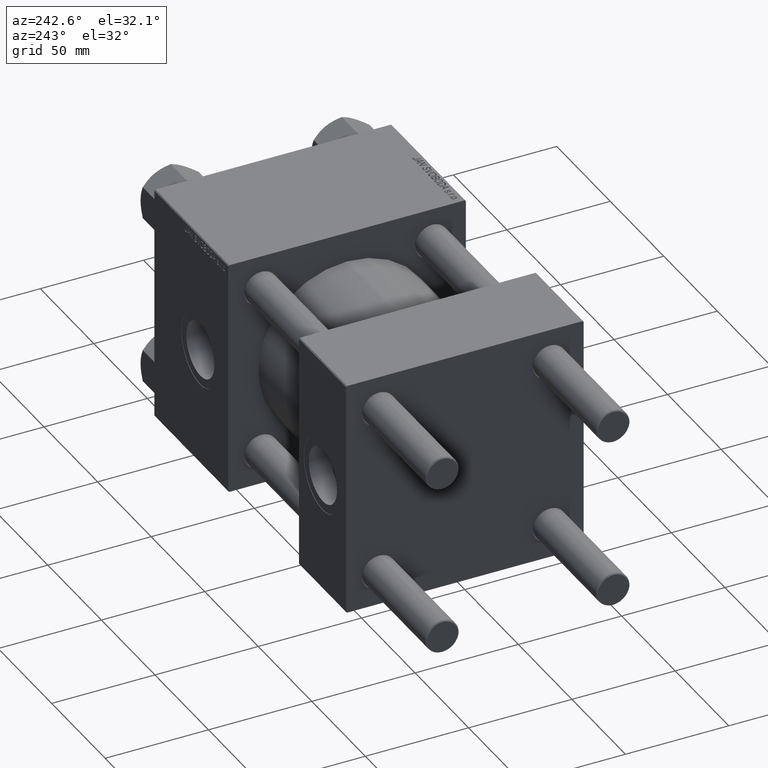
[diagram: clean part render]
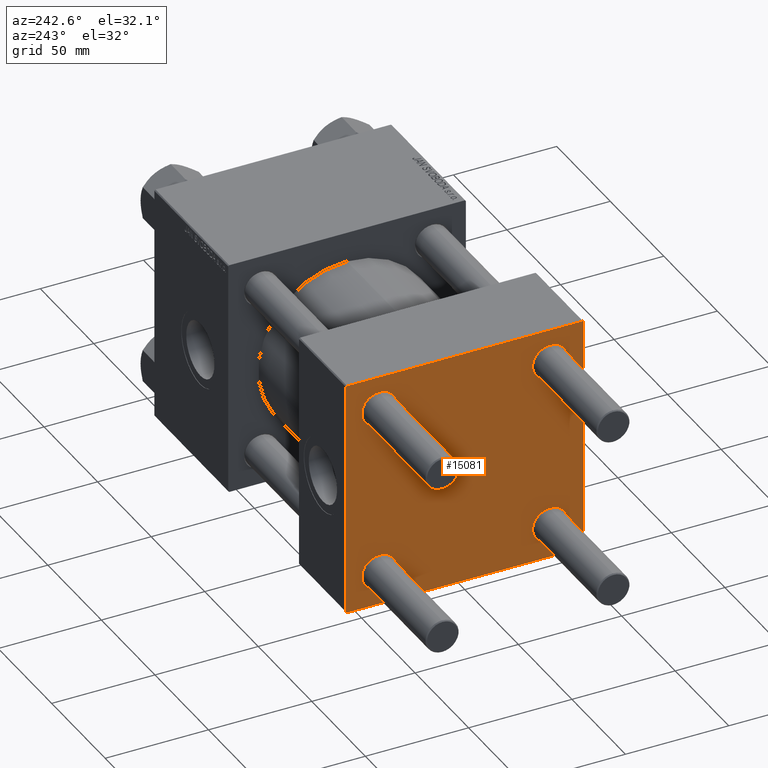
[diagram: same view with one face highlighted and labeled with its STEP entity id]
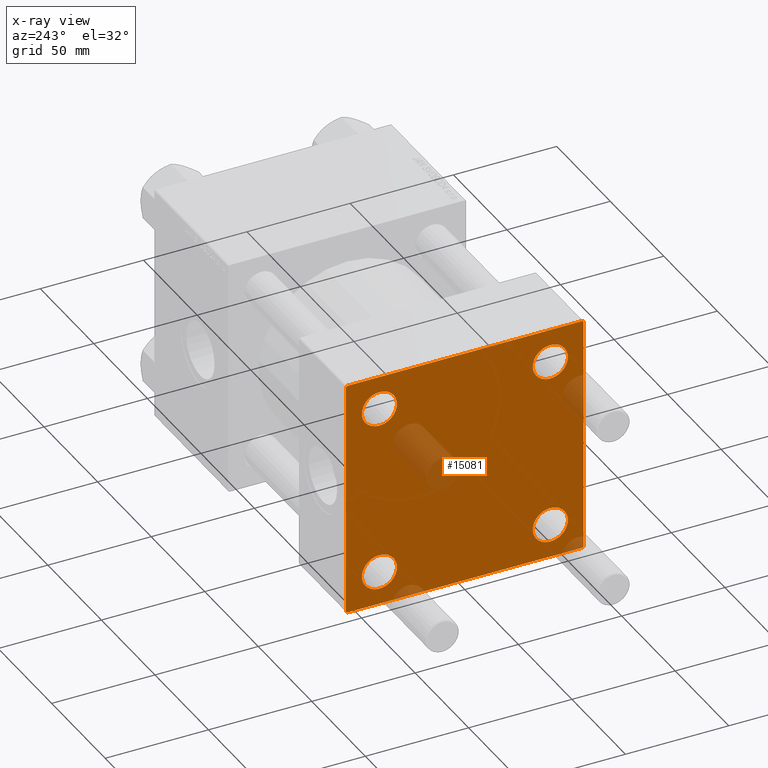
[diagram: x-ray of the same camera — body ghosted, the highlighted face saturated]
A machine part, auxiliary view. The second image highlights one B-rep face of the part: STEP entity #15081.
The next image is the same camera in x-ray: the body ghosted, the highlighted face saturated — about 7% of this face is hidden behind the body in this view.
In plain terms, the highlighted planar face has unit normal (-1, 0, 0).
Its self-contained STEP definition (entity closure, byte-faithful):
#62 = DIRECTION ( 'NONE',  ( 1.000000000000000000, -0.000000000000000000, 0.000000000000000000 ) ) ;
#481 = CARTESIAN_POINT ( 'NONE',  ( 0.000000000000000000, 57.00000000000000711, 57.50000000000000711 ) ) ;
#2339 = CIRCLE ( 'NONE', #10463, 8.499999999999992895 ) ;
#2659 = CIRCLE ( 'NONE', #42394, 8.499999999999992895 ) ;
#2953 = EDGE_LOOP ( 'NONE', ( #15882, #36241 ) ) ;
#3479 = DIRECTION ( 'NONE',  ( -0.000000000000000000, -0.7071067811865376918, -0.7071067811865573427 ) ) ;
#3498 = EDGE_CURVE ( 'NONE', #49100, #49139, #15349, .T. ) ;
#3598 = VERTEX_POINT ( 'NONE', #16058 ) ;
#3715 = EDGE_CURVE ( 'NONE', #22570, #4172, #25665, .T. ) ;
#3957 = LINE ( 'NONE', #22514, #30991 ) ;
#4044 = VERTEX_POINT ( 'NONE', #20174 ) ;
#4172 = VERTEX_POINT ( 'NONE', #8753 ) ;
#4495 = VERTEX_POINT ( 'NONE', #31535 ) ;
#4586 = EDGE_CURVE ( 'NONE', #6680, #10453, #29150, .T. ) ;
#4984 = DIRECTION ( 'NONE',  ( 0.000000000000000000, 0.000000000000000000, 1.000000000000000000 ) ) ;
#5360 = ORIENTED_EDGE ( 'NONE', *, *, #44325, .F. ) ;
#5475 = CARTESIAN_POINT ( 'NONE',  ( 0.000000000000000000, -57.50000000000000711, 57.00000000000000711 ) ) ;
#5715 = CARTESIAN_POINT ( 'NONE',  ( 0.000000000000000000, 57.49999999999999289, 57.50000000000000711 ) ) ;
#6337 = DIRECTION ( 'NONE',  ( 1.000000000000000000, -0.000000000000000000, 0.000000000000000000 ) ) ;
#6680 = VERTEX_POINT ( 'NONE', #18030 ) ;
#7150 = EDGE_LOOP ( 'NONE', ( #10071, #12585 ) ) ;
#7398 = ORIENTED_EDGE ( 'NONE', *, *, #11133, .T. ) ;
#8153 = CARTESIAN_POINT ( 'NONE',  ( 0.000000000000000000, 57.49999999999999289, 57.50000000000000711 ) ) ;
#8753 = CARTESIAN_POINT ( 'NONE',  ( 0.000000000000000000, -57.00000000000000711, -57.50000000000000711 ) ) ;
#8758 = DIRECTION ( 'NONE',  ( 0.000000000000000000, 0.000000000000000000, 1.000000000000000000 ) ) ;
#9741 = VERTEX_POINT ( 'NONE', #48912 ) ;
#10022 = ORIENTED_EDGE ( 'NONE', *, *, #39901, .T. ) ;
#10071 = ORIENTED_EDGE ( 'NONE', *, *, #37095, .T. ) ;
#10258 = EDGE_CURVE ( 'NONE', #20083, #19686, #22504, .T. ) ;
#10453 = VERTEX_POINT ( 'NONE', #35189 ) ;
#10463 = AXIS2_PLACEMENT_3D ( 'NONE', #12301, #34898, #15617 ) ;
#11133 = EDGE_CURVE ( 'NONE', #11585, #4495, #3957, .T. ) ;
#11585 = VERTEX_POINT ( 'NONE', #481 ) ;
#12115 = CARTESIAN_POINT ( 'NONE',  ( 0.000000000000000000, -41.34999999999998721, -41.35000000000000853 ) ) ;
#12301 = CARTESIAN_POINT ( 'NONE',  ( 0.000000000000000000, -41.34999999999998721, -41.35000000000000853 ) ) ;
#12574 = DIRECTION ( 'NONE',  ( 1.000000000000000000, -0.000000000000000000, 0.000000000000000000 ) ) ;
#12585 = ORIENTED_EDGE ( 'NONE', *, *, #17744, .T. ) ;
#12979 = AXIS2_PLACEMENT_3D ( 'NONE', #39718, #12574, #8758 ) ;
#13055 = EDGE_LOOP ( 'NONE', ( #46883, #19167 ) ) ;
#14077 = AXIS2_PLACEMENT_3D ( 'NONE', #12115, #35719, #4984 ) ;
#14632 = VECTOR ( 'NONE', #27470, 1000.000000000000000 ) ;
#14796 = AXIS2_PLACEMENT_3D ( 'NONE', #24832, #28884, #39806 ) ;
#14941 = LINE ( 'NONE', #19014, #26819 ) ;
#15045 = DIRECTION ( 'NONE',  ( 1.000000000000000000, -0.000000000000000000, 0.000000000000000000 ) ) ;
#15081 = ADVANCED_FACE ( 'NONE', ( #36491, #25079, #44607, #17465, #20766 ), #17213, .T. ) ;
#15123 = CARTESIAN_POINT ( 'NONE',  ( 0.000000000000000000, 41.34999999999999432, -49.85000000000000142 ) ) ;
#15349 = CIRCLE ( 'NONE', #32376, 8.499999999999992895 ) ;
#15416 = LINE ( 'NONE', #38268, #46576 ) ;
#15617 = DIRECTION ( 'NONE',  ( 0.000000000000000000, 0.000000000000000000, 1.000000000000000000 ) ) ;
#15882 = ORIENTED_EDGE ( 'NONE', *, *, #3498, .T. ) ;
#16058 = CARTESIAN_POINT ( 'NONE',  ( 0.000000000000000000, -41.34999999999998721, 32.85000000000001563 ) ) ;
#16219 = CIRCLE ( 'NONE', #12979, 8.499999999999992895 ) ;
#16520 = CIRCLE ( 'NONE', #14077, 8.499999999999992895 ) ;
#17213 = PLANE ( 'NONE',  #14796 ) ;
#17465 = FACE_BOUND ( 'NONE', #13055, .T. ) ;
#17744 = EDGE_CURVE ( 'NONE', #34540, #42874, #16520, .T. ) ;
#18030 = CARTESIAN_POINT ( 'NONE',  ( 0.000000000000000000, 41.34999999999999432, 32.85000000000000853 ) ) ;
#18291 = CARTESIAN_POINT ( 'NONE',  ( 0.000000000000000000, 57.00000000000002132, -57.49999999999999289 ) ) ;
#19014 = CARTESIAN_POINT ( 'NONE',  ( 0.000000000000000000, -57.50000000000000711, 57.49999999999999289 ) ) ;
#19167 = ORIENTED_EDGE ( 'NONE', *, *, #4586, .T. ) ;
#19370 = CARTESIAN_POINT ( 'NONE',  ( 0.000000000000000000, 41.34999999999999432, 41.35000000000000142 ) ) ;
#19496 = CARTESIAN_POINT ( 'NONE',  ( 0.000000000000000000, -41.34999999999998721, 41.35000000000000853 ) ) ;
#19686 = VERTEX_POINT ( 'NONE', #27551 ) ;
#20083 = VERTEX_POINT ( 'NONE', #5475 ) ;
#20174 = CARTESIAN_POINT ( 'NONE',  ( 0.000000000000000000, 57.49999999999999289, -57.00000000000000711 ) ) ;
#20766 = FACE_OUTER_BOUND ( 'NONE', #28230, .T. ) ;
#20973 = LINE ( 'NONE', #5715, #21126 ) ;
#20977 = LINE ( 'NONE', #28849, #24808 ) ;
#21126 = VECTOR ( 'NONE', #24795, 1000.000000000000000 ) ;
#21163 = ORIENTED_EDGE ( 'NONE', *, *, #40631, .F. ) ;
#21367 = CARTESIAN_POINT ( 'NONE',  ( 0.000000000000000000, -57.50000000000000711, -57.00000000000000711 ) ) ;
#21621 = EDGE_CURVE ( 'NONE', #4044, #22570, #15416, .T. ) ;
#22304 = DIRECTION ( 'NONE',  ( 0.000000000000000000, 0.000000000000000000, -1.000000000000000000 ) ) ;
#22504 = LINE ( 'NONE', #26827, #43147 ) ;
#22514 = CARTESIAN_POINT ( 'NONE',  ( 0.000000000000000000, 57.24999999999922551, 57.25000000000081712 ) ) ;
#22570 = VERTEX_POINT ( 'NONE', #18291 ) ;
#22849 = DIRECTION ( 'NONE',  ( 0.000000000000000000, 0.000000000000000000, 1.000000000000000000 ) ) ;
#24427 = ORIENTED_EDGE ( 'NONE', *, *, #46019, .T. ) ;
#24795 = DIRECTION ( 'NONE',  ( 0.000000000000000000, 0.000000000000000000, -1.000000000000000000 ) ) ;
#24808 = VECTOR ( 'NONE', #47890, 1000.000000000000114 ) ;
#24832 = CARTESIAN_POINT ( 'NONE',  ( 0.000000000000000000, 0.000000000000000000, 0.000000000000000000 ) ) ;
#24901 = EDGE_CURVE ( 'NONE', #4172, #36623, #20977, .T. ) ;
#25079 = FACE_BOUND ( 'NONE', #7150, .T. ) ;
#25665 = LINE ( 'NONE', #45187, #38866 ) ;
#26210 = EDGE_LOOP ( 'NONE', ( #24427, #49287 ) ) ;
#26819 = VECTOR ( 'NONE', #22304, 1000.000000000000000 ) ;
#26827 = CARTESIAN_POINT ( 'NONE',  ( -0.000000000000000000, -57.25000000000081712, 57.24999999999922551 ) ) ;
#27348 = DIRECTION ( 'NONE',  ( 0.000000000000000000, 0.7071067811865573427, -0.7071067811865376918 ) ) ;
#27470 = DIRECTION ( 'NONE',  ( 0.000000000000000000, -1.000000000000000000, -1.206764157201257045E-16 ) ) ;
#27551 = CARTESIAN_POINT ( 'NONE',  ( 0.000000000000000000, -57.00000000000003553, 57.49999999999999289 ) ) ;
#27946 = ORIENTED_EDGE ( 'NONE', *, *, #3715, .T. ) ;
#28230 = EDGE_LOOP ( 'NONE', ( #10022, #48186, #27946, #48389, #5360, #39662, #21163, #7398 ) ) ;
#28739 = DIRECTION ( 'NONE',  ( 0.000000000000000000, 0.000000000000000000, 1.000000000000000000 ) ) ;
#28849 = CARTESIAN_POINT ( 'NONE',  ( 0.000000000000000000, -57.25000000000000711, -57.25000000000000711 ) ) ;
#28884 = DIRECTION ( 'NONE',  ( -1.000000000000000000, 0.000000000000000000, -0.000000000000000000 ) ) ;
#29150 = CIRCLE ( 'NONE', #45377, 8.499999999999992895 ) ;
#29352 = CARTESIAN_POINT ( 'NONE',  ( 0.000000000000000000, 41.34999999999999432, -32.85000000000000853 ) ) ;
#30732 = DIRECTION ( 'NONE',  ( 1.000000000000000000, -0.000000000000000000, 0.000000000000000000 ) ) ;
#30991 = VECTOR ( 'NONE', #27348, 1000.000000000000114 ) ;
#31535 = CARTESIAN_POINT ( 'NONE',  ( 0.000000000000000000, 57.49999999999999289, 57.00000000000003553 ) ) ;
#32376 = AXIS2_PLACEMENT_3D ( 'NONE', #46764, #15045, #46005 ) ;
#33505 = CARTESIAN_POINT ( 'NONE',  ( 0.000000000000000000, -41.34999999999998721, -32.85000000000001563 ) ) ;
#34540 = VERTEX_POINT ( 'NONE', #47561 ) ;
#34716 = DIRECTION ( 'NONE',  ( 0.000000000000000000, 0.000000000000000000, 1.000000000000000000 ) ) ;
#34815 = LINE ( 'NONE', #8153, #14632 ) ;
#34898 = DIRECTION ( 'NONE',  ( 1.000000000000000000, -0.000000000000000000, 0.000000000000000000 ) ) ;
#35189 = CARTESIAN_POINT ( 'NONE',  ( 0.000000000000000000, 41.34999999999999432, 49.85000000000000142 ) ) ;
#35481 = DIRECTION ( 'NONE',  ( 1.000000000000000000, -0.000000000000000000, 0.000000000000000000 ) ) ;
#35719 = DIRECTION ( 'NONE',  ( 1.000000000000000000, -0.000000000000000000, 0.000000000000000000 ) ) ;
#36241 = ORIENTED_EDGE ( 'NONE', *, *, #49759, .T. ) ;
#36491 = FACE_BOUND ( 'NONE', #26210, .T. ) ;
#36623 = VERTEX_POINT ( 'NONE', #21367 ) ;
#37095 = EDGE_CURVE ( 'NONE', #42874, #34540, #2339, .T. ) ;
#38268 = CARTESIAN_POINT ( 'NONE',  ( 0.000000000000000000, 57.25000000000081712, -57.24999999999922551 ) ) ;
#38866 = VECTOR ( 'NONE', #41136, 1000.000000000000000 ) ;
#39153 = EDGE_CURVE ( 'NONE', #10453, #6680, #16219, .T. ) ;
#39662 = ORIENTED_EDGE ( 'NONE', *, *, #10258, .T. ) ;
#39718 = CARTESIAN_POINT ( 'NONE',  ( 0.000000000000000000, 41.34999999999999432, 41.35000000000000142 ) ) ;
#39806 = DIRECTION ( 'NONE',  ( -0.000000000000000000, 0.000000000000000000, 1.000000000000000000 ) ) ;
#39822 = CIRCLE ( 'NONE', #46298, 8.499999999999992895 ) ;
#39901 = EDGE_CURVE ( 'NONE', #4495, #4044, #20973, .T. ) ;
#39918 = AXIS2_PLACEMENT_3D ( 'NONE', #19496, #35481, #34716 ) ;
#40631 = EDGE_CURVE ( 'NONE', #11585, #19686, #34815, .T. ) ;
#41131 = CARTESIAN_POINT ( 'NONE',  ( 0.000000000000000000, -41.34999999999998721, 41.35000000000000853 ) ) ;
#41136 = DIRECTION ( 'NONE',  ( 0.000000000000000000, -1.000000000000000000, -1.206764157201257045E-16 ) ) ;
#42394 = AXIS2_PLACEMENT_3D ( 'NONE', #50031, #30732, #46730 ) ;
#42874 = VERTEX_POINT ( 'NONE', #33505 ) ;
#43147 = VECTOR ( 'NONE', #49912, 1000.000000000000114 ) ;
#44325 = EDGE_CURVE ( 'NONE', #20083, #36623, #14941, .T. ) ;
#44607 = FACE_BOUND ( 'NONE', #2953, .T. ) ;
#45187 = CARTESIAN_POINT ( 'NONE',  ( 0.000000000000000000, 57.49999999999999289, -57.49999999999999289 ) ) ;
#45377 = AXIS2_PLACEMENT_3D ( 'NONE', #19370, #62, #28739 ) ;
#45599 = CIRCLE ( 'NONE', #39918, 8.499999999999992895 ) ;
#46005 = DIRECTION ( 'NONE',  ( 0.000000000000000000, 0.000000000000000000, 1.000000000000000000 ) ) ;
#46019 = EDGE_CURVE ( 'NONE', #9741, #3598, #39822, .T. ) ;
#46298 = AXIS2_PLACEMENT_3D ( 'NONE', #41131, #6337, #22849 ) ;
#46576 = VECTOR ( 'NONE', #3479, 1000.000000000000114 ) ;
#46730 = DIRECTION ( 'NONE',  ( 0.000000000000000000, 0.000000000000000000, 1.000000000000000000 ) ) ;
#46764 = CARTESIAN_POINT ( 'NONE',  ( 0.000000000000000000, 41.34999999999999432, -41.35000000000000142 ) ) ;
#46883 = ORIENTED_EDGE ( 'NONE', *, *, #39153, .T. ) ;
#47561 = CARTESIAN_POINT ( 'NONE',  ( 0.000000000000000000, -41.34999999999998721, -49.85000000000000853 ) ) ;
#47890 = DIRECTION ( 'NONE',  ( 0.000000000000000000, -0.7071067811865474617, 0.7071067811865474617 ) ) ;
#48186 = ORIENTED_EDGE ( 'NONE', *, *, #21621, .T. ) ;
#48383 = EDGE_CURVE ( 'NONE', #3598, #9741, #45599, .T. ) ;
#48389 = ORIENTED_EDGE ( 'NONE', *, *, #24901, .T. ) ;
#48912 = CARTESIAN_POINT ( 'NONE',  ( 0.000000000000000000, -41.34999999999998721, 49.85000000000000853 ) ) ;
#49100 = VERTEX_POINT ( 'NONE', #29352 ) ;
#49139 = VERTEX_POINT ( 'NONE', #15123 ) ;
#49287 = ORIENTED_EDGE ( 'NONE', *, *, #48383, .T. ) ;
#49759 = EDGE_CURVE ( 'NONE', #49139, #49100, #2659, .T. ) ;
#49912 = DIRECTION ( 'NONE',  ( -0.000000000000000000, 0.7071067811865376918, 0.7071067811865573427 ) ) ;
#50031 = CARTESIAN_POINT ( 'NONE',  ( 0.000000000000000000, 41.34999999999999432, -41.35000000000000142 ) ) ;